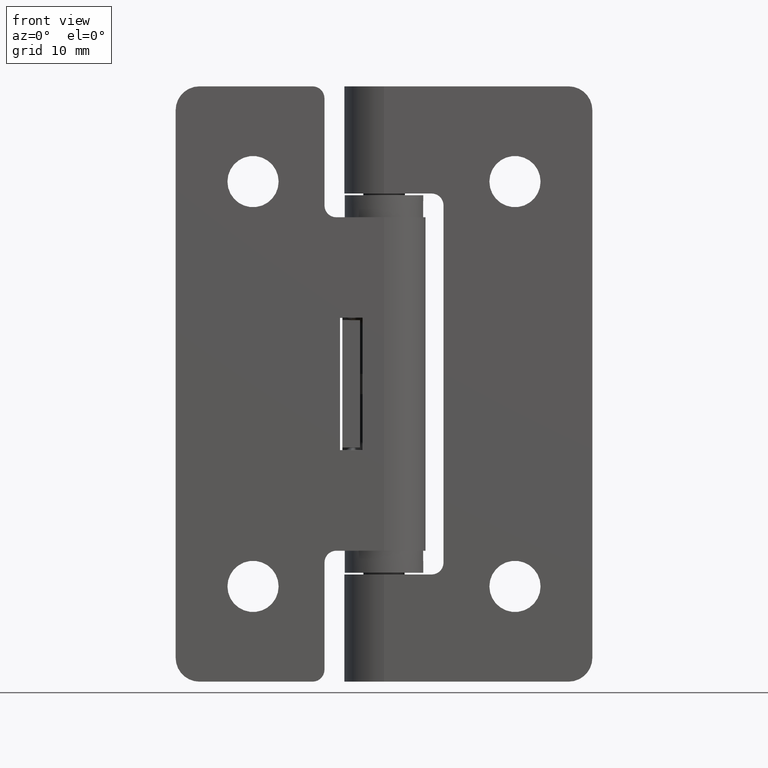
[diagram: clean part render]
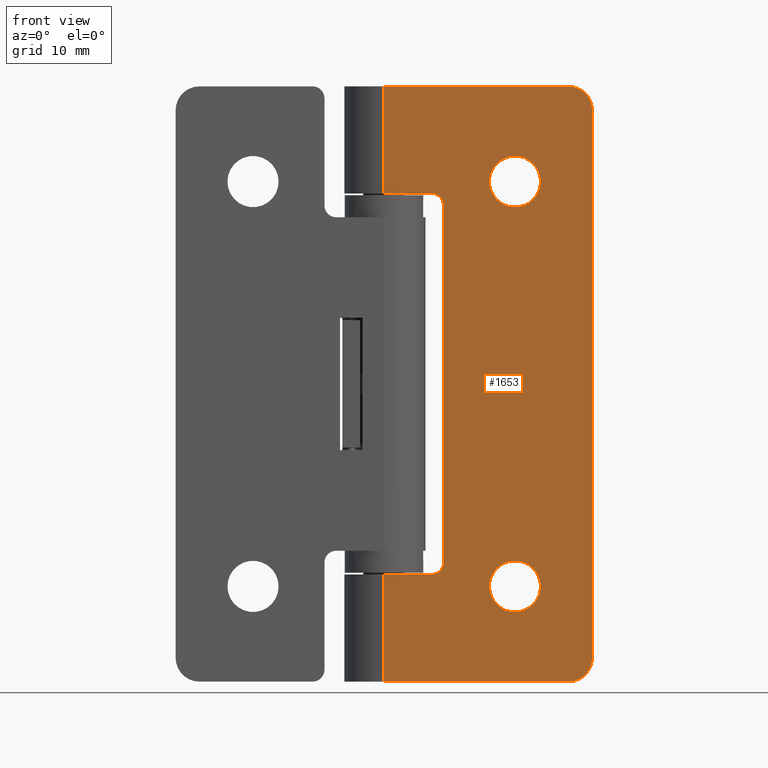
[diagram: same view with one face highlighted and labeled with its STEP entity id]
A machine part, front view. The second image highlights one B-rep face of the part: STEP entity #1653.
In plain terms, the highlighted planar face has unit normal (0, 1, 0).
Its self-contained STEP definition (entity closure, byte-faithful):
#146=LINE('',#2636,#268);
#149=LINE('',#2646,#271);
#158=LINE('',#2679,#280);
#159=LINE('',#2685,#281);
#160=LINE('',#2687,#282);
#161=LINE('',#2691,#283);
#162=LINE('',#2693,#284);
#163=LINE('',#2696,#285);
#268=VECTOR('',#2108,9.00000000000001);
#271=VECTOR('',#2117,46.);
#280=VECTOR('',#2150,9.);
#281=VECTOR('',#2157,4.0000000004236);
#282=VECTOR('',#2158,15.5000000004236);
#283=VECTOR('',#2163,15.5000000004236);
#284=VECTOR('',#2164,4.0000000004236);
#285=VECTOR('',#2167,30.);
#348=PLANE('',#1797);
#383=FACE_BOUND('',#560,.T.);
#384=FACE_BOUND('',#561,.T.);
#448=FACE_OUTER_BOUND('',#559,.T.);
#559=EDGE_LOOP('',(#1319,#1320,#1321,#1322,#1323,#1324,#1325,#1326,#1327,
#1328,#1329,#1330));
#560=EDGE_LOOP('',(#1331));
#561=EDGE_LOOP('',(#1332));
#665=CIRCLE('',#1772,2.15);
#667=CIRCLE('',#1775,2.15);
#681=CIRCLE('',#1798,1.);
#682=CIRCLE('',#1799,2.);
#683=CIRCLE('',#1800,2.);
#684=CIRCLE('',#1801,1.);
#793=VERTEX_POINT('',#2615);
#795=VERTEX_POINT('',#2620);
#801=VERTEX_POINT('',#2634);
#802=VERTEX_POINT('',#2635);
#805=VERTEX_POINT('',#2643);
#806=VERTEX_POINT('',#2645);
#817=VERTEX_POINT('',#2676);
#818=VERTEX_POINT('',#2678);
#819=VERTEX_POINT('',#2682);
#820=VERTEX_POINT('',#2683);
#821=VERTEX_POINT('',#2686);
#822=VERTEX_POINT('',#2689);
#823=VERTEX_POINT('',#2692);
#824=VERTEX_POINT('',#2694);
#975=EDGE_CURVE('',#793,#793,#665,.T.);
#977=EDGE_CURVE('',#795,#795,#667,.T.);
#983=EDGE_CURVE('',#801,#802,#146,.T.);
#988=EDGE_CURVE('',#805,#806,#149,.T.);
#1004=EDGE_CURVE('',#818,#817,#158,.T.);
#1006=EDGE_CURVE('',#819,#820,#681,.T.);
#1007=EDGE_CURVE('',#820,#801,#159,.T.);
#1008=EDGE_CURVE('',#802,#821,#160,.T.);
#1009=EDGE_CURVE('',#821,#806,#682,.T.);
#1010=EDGE_CURVE('',#805,#822,#683,.T.);
#1011=EDGE_CURVE('',#818,#822,#161,.T.);
#1012=EDGE_CURVE('',#817,#823,#162,.T.);
#1013=EDGE_CURVE('',#823,#824,#684,.T.);
#1014=EDGE_CURVE('',#824,#819,#163,.T.);
#1319=ORIENTED_EDGE('',*,*,#1006,.T.);
#1320=ORIENTED_EDGE('',*,*,#1007,.T.);
#1321=ORIENTED_EDGE('',*,*,#983,.T.);
#1322=ORIENTED_EDGE('',*,*,#1008,.T.);
#1323=ORIENTED_EDGE('',*,*,#1009,.T.);
#1324=ORIENTED_EDGE('',*,*,#988,.F.);
#1325=ORIENTED_EDGE('',*,*,#1010,.T.);
#1326=ORIENTED_EDGE('',*,*,#1011,.F.);
#1327=ORIENTED_EDGE('',*,*,#1004,.T.);
#1328=ORIENTED_EDGE('',*,*,#1012,.T.);
#1329=ORIENTED_EDGE('',*,*,#1013,.T.);
#1330=ORIENTED_EDGE('',*,*,#1014,.T.);
#1331=ORIENTED_EDGE('',*,*,#975,.T.);
#1332=ORIENTED_EDGE('',*,*,#977,.T.);
#1653=ADVANCED_FACE('',(#448,#383,#384),#348,.F.);
#1772=AXIS2_PLACEMENT_3D('',#2616,#2088,#2089);
#1775=AXIS2_PLACEMENT_3D('',#2621,#2094,#2095);
#1797=AXIS2_PLACEMENT_3D('',#2681,#2153,#2154);
#1798=AXIS2_PLACEMENT_3D('',#2684,#2155,#2156);
#1799=AXIS2_PLACEMENT_3D('',#2688,#2159,#2160);
#1800=AXIS2_PLACEMENT_3D('',#2690,#2161,#2162);
#1801=AXIS2_PLACEMENT_3D('',#2695,#2165,#2166);
#2088=DIRECTION('center_axis',(0.,1.,0.));
#2089=DIRECTION('ref_axis',(0.,0.,1.));
#2094=DIRECTION('center_axis',(0.,1.,0.));
#2095=DIRECTION('ref_axis',(0.,0.,1.));
#2108=DIRECTION('',(-1.,0.,0.));
#2117=DIRECTION('',(-1.,0.,0.));
#2150=DIRECTION('',(-1.,0.,0.));
#2153=DIRECTION('center_axis',(0.,1.,0.));
#2154=DIRECTION('ref_axis',(0.,0.,1.));
#2155=DIRECTION('center_axis',(0.,1.,0.));
#2156=DIRECTION('ref_axis',(0.,0.,1.));
#2157=DIRECTION('',(0.,0.,1.));
#2158=DIRECTION('',(0.,0.,-1.));
#2159=DIRECTION('center_axis',(0.,-1.,0.));
#2160=DIRECTION('ref_axis',(0.,0.,1.));
#2161=DIRECTION('center_axis',(0.,-1.,0.));
#2162=DIRECTION('ref_axis',(0.,0.,1.));
#2163=DIRECTION('',(0.,0.,-1.));
#2164=DIRECTION('',(0.,0.,-1.));
#2165=DIRECTION('center_axis',(0.,1.,0.));
#2166=DIRECTION('ref_axis',(0.,0.,1.));
#2167=DIRECTION('',(-1.,0.,0.));
#2615=CARTESIAN_POINT('',(17.,-3.49999999985157,-8.85));
#2616=CARTESIAN_POINT('Origin',(17.,-3.49999999985157,-11.));
#2620=CARTESIAN_POINT('',(-17.,-3.49999999985157,-8.85));
#2621=CARTESIAN_POINT('Origin',(-17.,-3.49999999985157,-11.));
#2634=CARTESIAN_POINT('',(-16.,-3.49999999985157,4.23597788790087E-10));
#2635=CARTESIAN_POINT('',(-25.,-3.49999999985157,4.23597901547113E-10));
#2636=CARTESIAN_POINT('',(25.,-3.49999999985157,4.23597901547113E-10));
#2643=CARTESIAN_POINT('',(23.,-3.49999999985157,-17.5));
#2645=CARTESIAN_POINT('',(-23.,-3.49999999985157,-17.5));
#2646=CARTESIAN_POINT('',(25.,-3.49999999985157,-17.4999999995762));
#2676=CARTESIAN_POINT('',(16.,-3.49999999985157,4.23597788790087E-10));
#2678=CARTESIAN_POINT('',(25.,-3.49999999985157,4.23597901547113E-10));
#2679=CARTESIAN_POINT('',(25.,-3.49999999985157,4.23597901547113E-10));
#2681=CARTESIAN_POINT('Origin',(25.,-3.49999999985157,4.23597901547113E-10));
#2682=CARTESIAN_POINT('',(-15.,-3.49999999985157,-5.));
#2683=CARTESIAN_POINT('',(-16.,-3.49999999985157,-4.));
#2684=CARTESIAN_POINT('Origin',(-15.,-3.49999999985157,-4.));
#2685=CARTESIAN_POINT('',(-16.,-3.49999999985157,-4.));
#2686=CARTESIAN_POINT('',(-25.,-3.49999999985157,-15.5));
#2687=CARTESIAN_POINT('',(-25.,-3.49999999985157,4.23597901547113E-10));
#2688=CARTESIAN_POINT('Origin',(-23.,-3.49999999985157,-15.5));
#2689=CARTESIAN_POINT('',(25.,-3.49999999985157,-15.5));
#2690=CARTESIAN_POINT('Origin',(23.,-3.49999999985157,-15.5));
#2691=CARTESIAN_POINT('',(25.,-3.49999999985157,4.23597901547113E-10));
#2692=CARTESIAN_POINT('',(16.,-3.49999999985157,-4.));
#2693=CARTESIAN_POINT('',(16.,-3.49999999985157,3.32500000000005));
#2694=CARTESIAN_POINT('',(15.,-3.49999999985157,-5.));
#2695=CARTESIAN_POINT('Origin',(15.,-3.49999999985157,-4.));
#2696=CARTESIAN_POINT('',(-15.,-3.49999999985157,-5.));